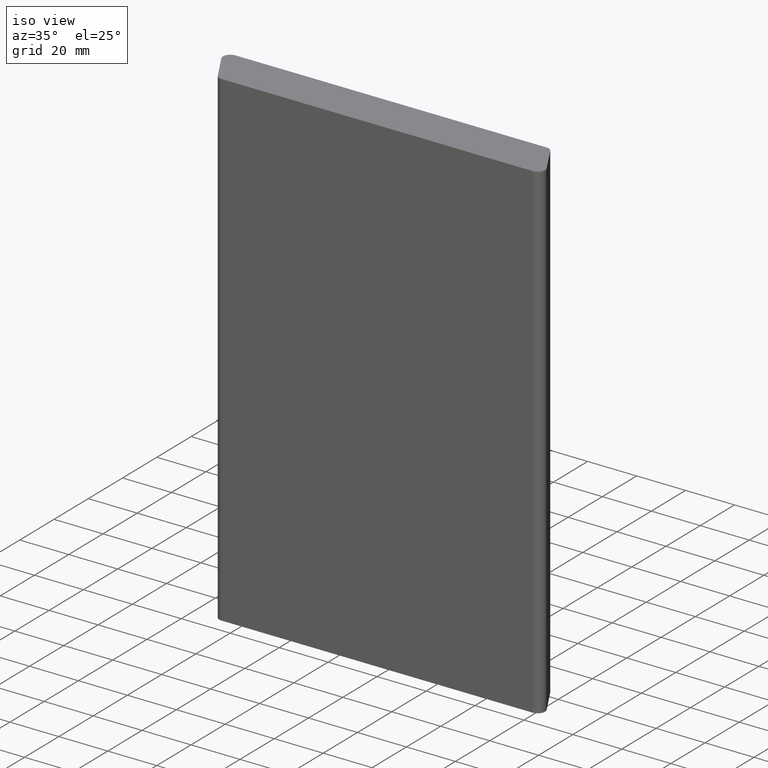
[diagram: clean part render]
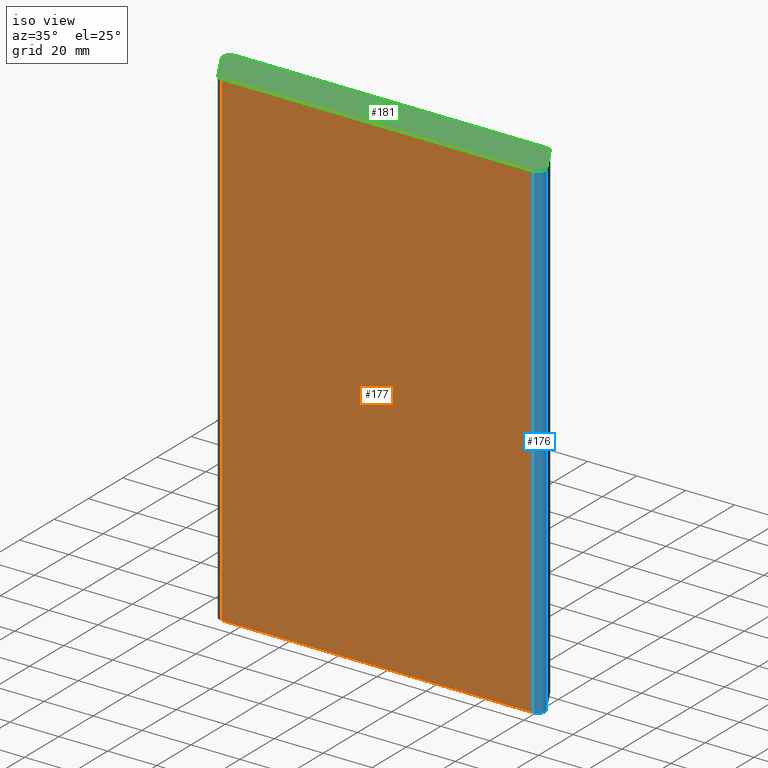
[diagram: same view with three faces highlighted in distinct colors, each labeled with its STEP entity id]
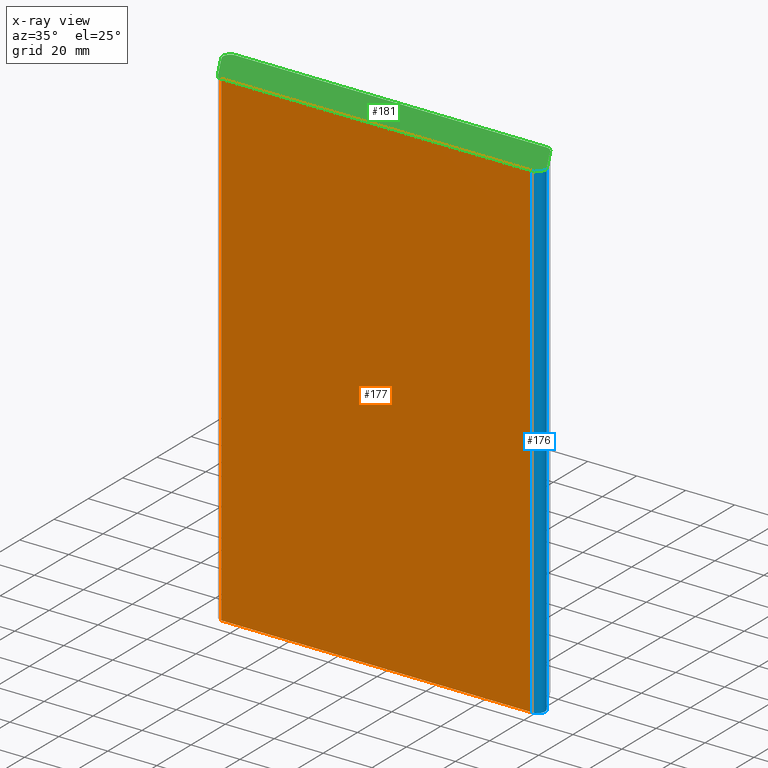
[diagram: x-ray of the same camera — body ghosted, the three highlighted faces saturated]
A machine part, iso view with three faces highlighted in distinct colors.
The next image is the same camera in x-ray (body ghosted, the three faces saturated) — at least one of them is partly hidden behind the body in this view.
Their STEP definitions:

[orange] entity #177 — the highlighted planar face has unit normal (0, -1, 0).
#31=FACE_OUTER_BOUND('',#41,.T.);
#41=EDGE_LOOP('',(#135,#136,#137,#138));
#55=LINE('',#296,#71);
#56=LINE('',#299,#72);
#57=LINE('',#301,#73);
#58=LINE('',#302,#74);
#71=VECTOR('',#241,10.);
#72=VECTOR('',#244,10.);
#73=VECTOR('',#245,10.);
#74=VECTOR('',#246,10.);
#87=VERTEX_POINT('',#292);
#88=VERTEX_POINT('',#294);
#89=VERTEX_POINT('',#298);
#90=VERTEX_POINT('',#300);
#107=EDGE_CURVE('',#87,#88,#55,.T.);
#108=EDGE_CURVE('',#89,#87,#56,.T.);
#109=EDGE_CURVE('',#90,#88,#57,.T.);
#110=EDGE_CURVE('',#89,#90,#58,.T.);
#135=ORIENTED_EDGE('',*,*,#108,.T.);
#136=ORIENTED_EDGE('',*,*,#107,.T.);
#137=ORIENTED_EDGE('',*,*,#109,.F.);
#138=ORIENTED_EDGE('',*,*,#110,.F.);
#169=PLANE('',#205);
#177=ADVANCED_FACE('',(#31),#169,.T.);
#205=AXIS2_PLACEMENT_3D('',#297,#242,#243);
#241=DIRECTION('',(0.,0.,1.));
#242=DIRECTION('center_axis',(1.83622643745109E-9,-1.,0.));
#243=DIRECTION('ref_axis',(1.,1.83622643745109E-9,0.));
#244=DIRECTION('',(1.,1.83622643745109E-9,0.));
#245=DIRECTION('',(1.,1.83622643745109E-9,0.));
#246=DIRECTION('',(0.,0.,1.));
#292=CARTESIAN_POINT('',(63.5358983903718,1.16666296623436E-7,0.));
#294=CARTESIAN_POINT('',(63.5358983903718,1.16666296623436E-7,200.));
#296=CARTESIAN_POINT('',(63.5358983903718,1.16666296623436E-7,0.));
#297=CARTESIAN_POINT('Origin',(-63.5358983903717,-1.16666296351607E-7,0.));
#298=CARTESIAN_POINT('',(-63.5358983903717,-1.16666296623436E-7,0.));
#299=CARTESIAN_POINT('',(-63.5358983903717,-1.16666296351607E-7,0.));
#300=CARTESIAN_POINT('',(-63.5358983903717,-1.16666296623436E-7,200.));
#301=CARTESIAN_POINT('',(-63.5358983903717,-1.16666296351607E-7,200.));
#302=CARTESIAN_POINT('',(-63.5358983903717,-1.16666296623436E-7,0.));

[blue] entity #176 — the highlighted cylindrical surface (edge-blend (fillet) strip) has radius 3 mm, axis along (0, 0, 1).
#17=CIRCLE('',#203,3.);
#18=CIRCLE('',#204,3.);
#24=CYLINDRICAL_SURFACE('',#202,3.);
#30=FACE_OUTER_BOUND('',#40,.T.);
#40=EDGE_LOOP('',(#131,#132,#133,#134));
#54=LINE('',#290,#70);
#55=LINE('',#296,#71);
#70=VECTOR('',#234,10.);
#71=VECTOR('',#241,10.);
#85=VERTEX_POINT('',#286);
#86=VERTEX_POINT('',#288);
#87=VERTEX_POINT('',#292);
#88=VERTEX_POINT('',#294);
#104=EDGE_CURVE('',#85,#86,#54,.T.);
#105=EDGE_CURVE('',#87,#85,#17,.T.);
#106=EDGE_CURVE('',#88,#86,#18,.T.);
#107=EDGE_CURVE('',#87,#88,#55,.T.);
#131=ORIENTED_EDGE('',*,*,#105,.T.);
#132=ORIENTED_EDGE('',*,*,#104,.T.);
#133=ORIENTED_EDGE('',*,*,#106,.F.);
#134=ORIENTED_EDGE('',*,*,#107,.F.);
#176=ADVANCED_FACE('',(#30),#24,.T.);
#202=AXIS2_PLACEMENT_3D('',#291,#235,#236);
#203=AXIS2_PLACEMENT_3D('',#293,#237,#238);
#204=AXIS2_PLACEMENT_3D('',#295,#239,#240);
#234=DIRECTION('',(0.,0.,1.));
#235=DIRECTION('center_axis',(0.,0.,1.));
#236=DIRECTION('ref_axis',(1.8362259860775E-9,-1.,0.));
#237=DIRECTION('center_axis',(0.,0.,1.));
#238=DIRECTION('ref_axis',(1.8362259860775E-9,-1.,0.));
#239=DIRECTION('center_axis',(0.,0.,1.));
#240=DIRECTION('ref_axis',(1.8362259860775E-9,-1.,0.));
#241=DIRECTION('',(0.,0.,1.));
#286=CARTESIAN_POINT('',(66.1339745934621,4.50000012143695,0.));
#288=CARTESIAN_POINT('',(66.133974593462,4.50000012143695,200.));
#290=CARTESIAN_POINT('',(66.1339745934621,4.50000012143695,0.));
#291=CARTESIAN_POINT('Origin',(63.5358983848631,3.0000001166663,0.));
#292=CARTESIAN_POINT('',(63.5358983903718,1.16666296623436E-7,0.));
#293=CARTESIAN_POINT('Origin',(63.5358983848631,3.0000001166663,0.));
#294=CARTESIAN_POINT('',(63.5358983903718,1.16666296623436E-7,200.));
#295=CARTESIAN_POINT('Origin',(63.5358983848631,3.0000001166663,200.));
#296=CARTESIAN_POINT('',(63.5358983903718,1.16666296623436E-7,0.));

[green] entity #181 — the highlighted planar face has unit normal (0, 0, 1).
#16=CIRCLE('',#200,3.00000000000001);
#18=CIRCLE('',#204,3.);
#20=CIRCLE('',#208,2.99999999999999);
#22=CIRCLE('',#212,3.);
#35=FACE_OUTER_BOUND('',#45,.T.);
#45=EDGE_LOOP('',(#151,#152,#153,#154,#155,#156,#157,#158));
#49=LINE('',#277,#65);
#53=LINE('',#289,#69);
#57=LINE('',#301,#73);
#61=LINE('',#313,#77);
#65=VECTOR('',#221,10.);
#69=VECTOR('',#233,10.);
#73=VECTOR('',#245,10.);
#77=VECTOR('',#257,10.);
#81=VERTEX_POINT('',#274);
#82=VERTEX_POINT('',#276);
#84=VERTEX_POINT('',#282);
#86=VERTEX_POINT('',#288);
#88=VERTEX_POINT('',#294);
#90=VERTEX_POINT('',#300);
#92=VERTEX_POINT('',#306);
#94=VERTEX_POINT('',#312);
#97=EDGE_CURVE('',#82,#81,#49,.T.);
#100=EDGE_CURVE('',#84,#82,#16,.T.);
#103=EDGE_CURVE('',#86,#84,#53,.T.);
#106=EDGE_CURVE('',#88,#86,#18,.T.);
#109=EDGE_CURVE('',#90,#88,#57,.T.);
#112=EDGE_CURVE('',#92,#90,#20,.T.);
#115=EDGE_CURVE('',#94,#92,#61,.T.);
#118=EDGE_CURVE('',#81,#94,#22,.T.);
#151=ORIENTED_EDGE('',*,*,#118,.T.);
#152=ORIENTED_EDGE('',*,*,#115,.T.);
#153=ORIENTED_EDGE('',*,*,#112,.T.);
#154=ORIENTED_EDGE('',*,*,#109,.T.);
#155=ORIENTED_EDGE('',*,*,#106,.T.);
#156=ORIENTED_EDGE('',*,*,#103,.T.);
#157=ORIENTED_EDGE('',*,*,#100,.T.);
#158=ORIENTED_EDGE('',*,*,#97,.T.);
#171=PLANE('',#213);
#181=ADVANCED_FACE('',(#35),#171,.T.);
#200=AXIS2_PLACEMENT_3D('',#283,#227,#228);
#204=AXIS2_PLACEMENT_3D('',#295,#239,#240);
#208=AXIS2_PLACEMENT_3D('',#307,#251,#252);
#212=AXIS2_PLACEMENT_3D('',#317,#263,#264);
#213=AXIS2_PLACEMENT_3D('',#318,#265,#266);
#221=DIRECTION('',(-1.,-1.95399507220231E-9,0.));
#227=DIRECTION('center_axis',(0.,0.,1.));
#228=DIRECTION('ref_axis',(0.866025402866326,0.500000001590219,0.));
#233=DIRECTION('',(-0.500000001590219,0.866025402866325,0.));
#239=DIRECTION('center_axis',(0.,0.,1.));
#240=DIRECTION('ref_axis',(1.8362259860775E-9,-1.,0.));
#245=DIRECTION('',(1.,1.83622643745109E-9,0.));
#251=DIRECTION('center_axis',(0.,0.,1.));
#252=DIRECTION('ref_axis',(-0.866025403784439,-0.5,0.));
#257=DIRECTION('',(0.5,-0.866025403784439,0.));
#263=DIRECTION('center_axis',(0.,0.,1.));
#264=DIRECTION('ref_axis',(-1.95399548393501E-9,1.,0.));
#265=DIRECTION('center_axis',(0.,0.,1.));
#266=DIRECTION('ref_axis',(1.,0.,0.));
#274=CARTESIAN_POINT('',(-70.4641016209989,17.9999998642482,200.));
#276=CARTESIAN_POINT('',(56.6076951217249,18.0000001125459,200.));
#277=CARTESIAN_POINT('',(-70.4641016209989,17.9999998642482,200.));
#282=CARTESIAN_POINT('',(59.2057713361858,16.5000001173165,200.));
#283=CARTESIAN_POINT('Origin',(56.6076951275869,15.0000001125459,200.));
#288=CARTESIAN_POINT('',(66.133974593462,4.50000012143695,200.));
#289=CARTESIAN_POINT('',(66.1339745934621,4.50000012143695,200.));
#294=CARTESIAN_POINT('',(63.5358983903718,1.16666296623436E-7,200.));
#295=CARTESIAN_POINT('Origin',(63.5358983848631,3.0000001166663,200.));
#300=CARTESIAN_POINT('',(-63.5358983903717,-1.16666296623436E-7,200.));
#301=CARTESIAN_POINT('',(-63.5358983903717,-1.16666296351607E-7,200.));
#306=CARTESIAN_POINT('',(-66.1339746072337,1.4999998833337,200.));
#307=CARTESIAN_POINT('Origin',(-63.5358983958804,2.9999998833337,200.));
#312=CARTESIAN_POINT('',(-73.0621778264902,13.4999998642482,200.));
#313=CARTESIAN_POINT('',(-66.1339746072337,1.4999998833337,200.));
#317=CARTESIAN_POINT('Origin',(-70.4641016151369,14.9999998642482,200.));
#318=CARTESIAN_POINT('Origin',(-3.46410161513692,8.9999999979398,200.));